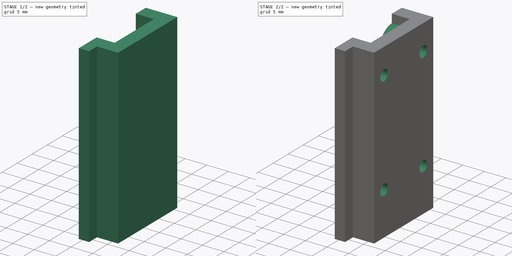
[diagram: build sequence overview — one tinted view per stage of 2, left to right]
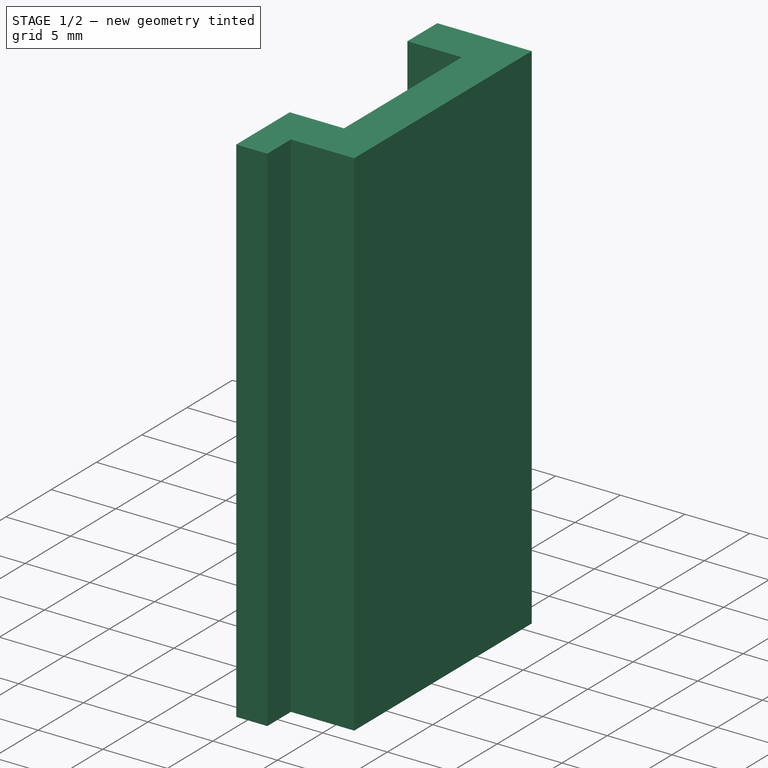
[diagram: stage 1 of 2 — iso view after this stage's code; geometry added in this stage tinted green]
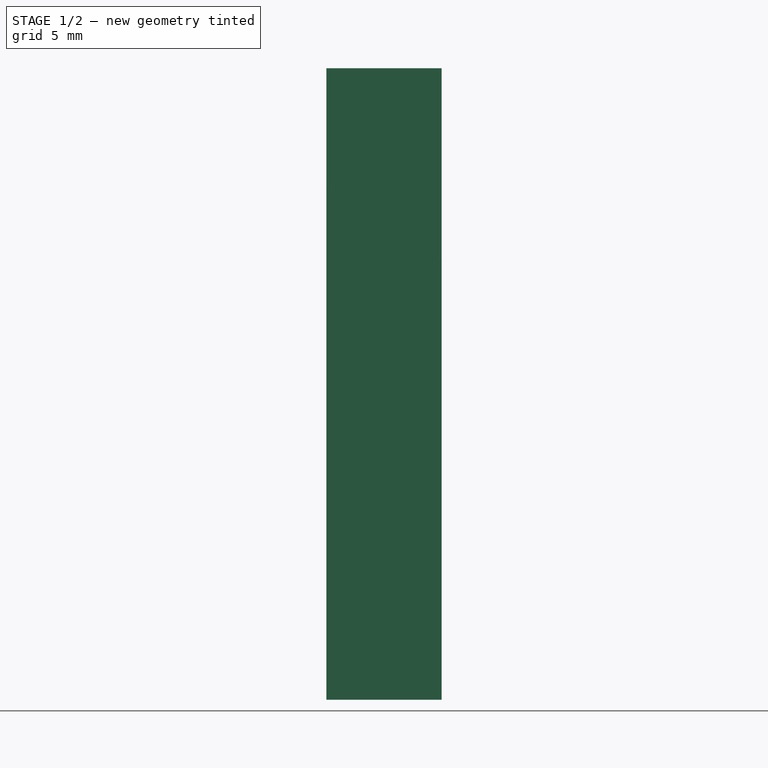
[diagram: stage 1 of 2 — front view after this stage's code; geometry added in this stage tinted green]
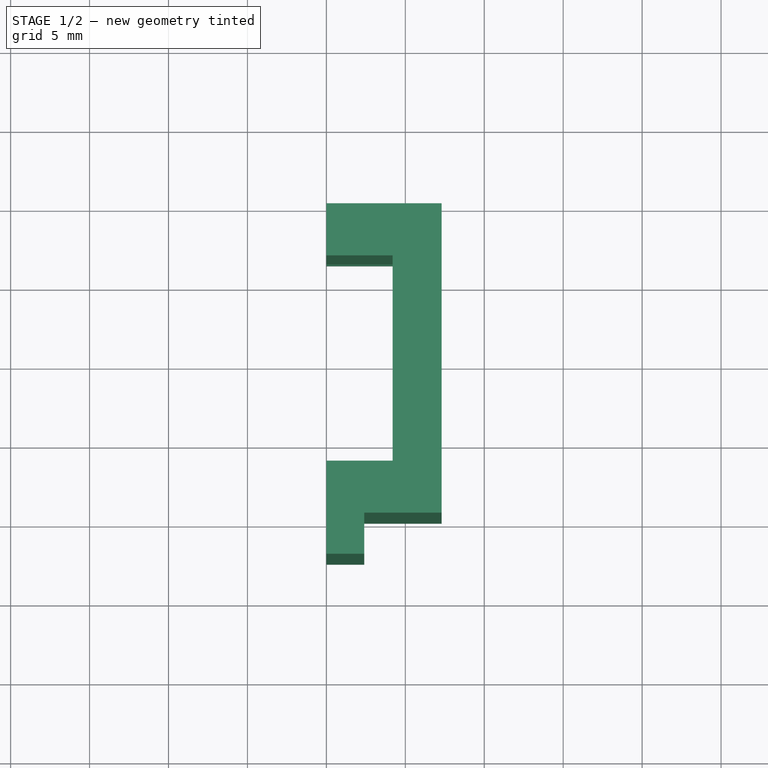
[diagram: stage 1 of 2 — top view after this stage's code; geometry added in this stage tinted green]
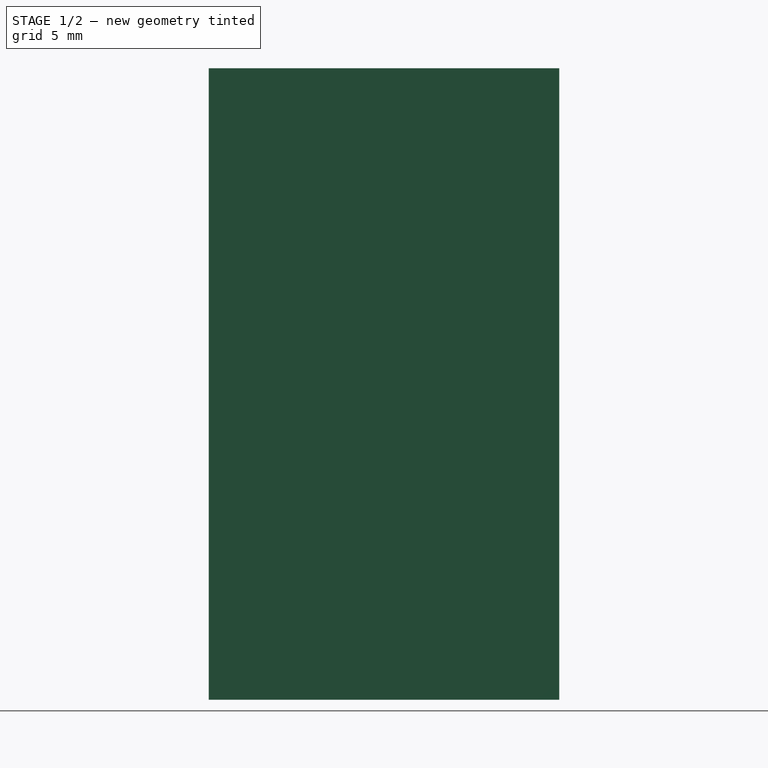
[diagram: stage 1 of 2 — right view after this stage's code; geometry added in this stage tinted green]
FCSTD DOCUMENT  (FreeCAD 0.16R6706 (Git))
Label: Prise-002
License: All rights reserved
LicenseURL: http://en.wikipedia.org/wiki/All_rights_reserved
objects: Sketcher::SketchObject×4, PartDesign::Pad×2, PartDesign::Pocket×2, Part::Feature×1
note: 13 computed .brp shape members not serialized (recipe doc carries the construction recipe); baked Part::Feature solids carry a one-line shape summary decoded from their .brp

FEATURE [Part::Feature] Part__Feature  label="Fusion"
  Placement = pos=(0,0,3) rot=(0,0,1;0rad)
  shape: bbox 8 x 15 x 9.6 mm, 42 faces (baked)
FEATURE [Sketcher::SketchObject] MirroredSketch  label="Sketch"
  sketch-geometry (10):
    g0: LineSegment StartX=7.3 StartY=9.8 StartZ=0 EndX=0 EndY=9.8 EndZ=0
    g1: LineSegment StartX=7.3 StartY=-9.8 StartZ=0 EndX=7.3 EndY=9.8 EndZ=0
    g2: LineSegment StartX=4.2 StartY=6.5 StartZ=0 EndX=0 EndY=6.5 EndZ=0
    g3: LineSegment StartX=0 StartY=-6.5 StartZ=0 EndX=4.2 EndY=-6.5 EndZ=0
    g4: LineSegment StartX=4.2 StartY=-6.5 StartZ=0 EndX=4.2 EndY=6.5 EndZ=0
    g5: LineSegment StartX=0 StartY=9.8 StartZ=0 EndX=0 EndY=6.5 EndZ=0
    g6: LineSegment StartX=0 StartY=-6.5 StartZ=0 EndX=0 EndY=-12.4 EndZ=0
    g7: LineSegment StartX=7.3 StartY=-9.8 StartZ=0 EndX=2.4 EndY=-9.8 EndZ=0
    g8: LineSegment StartX=2.4 StartY=-9.8 StartZ=0 EndX=2.4 EndY=-12.4 EndZ=0
    g9: LineSegment StartX=2.4 StartY=-12.4 StartZ=0 EndX=0 EndY=-12.4 EndZ=0
  constraints (30):
    c: Coincident(g1,g0)
    c: Horizontal(g0)
    c: Vertical(g1)
    c: Coincident(g3,g4)
    c: Coincident(g4,g2)
    c: Horizontal(g2)
    c: Horizontal(g3)
    c: Vertical(g4)
    c: Vertical(g6)
    c: Vertical(g5)
    c: Coincident(g0,g5)
    c: Coincident(g2,g5)
    c: Coincident(g3,g6)
    c: Coincident(g1,g7)
    c: Horizontal(g7)
    c: Coincident(g7,g8)
    c: Vertical(g8)
    c: Coincident(g8,g9)
    c: Horizontal(g9)
    c: Coincident(g6,g9)
    c: DistanceX(g0,g0) = 7.3
    c: DistanceY(g1,g1) = 19.6
    c: DistanceY(g0) = 9.8
    c: DistanceY(g4,g4) = 13
    c: DistanceX(g2,g2) = 4.2
    c: DistanceY(g8,g8) = 2.6
    c: DistanceX(g9,g9) = 2.4
    c: DistanceY(g3) = -6.5
    c: PointOnObject(g0,g-2)
    c: PointOnObject(g6,g-2)
FEATURE [PartDesign::Pad] Pad
  Length = 40
  Length2 = 100
  Sketch = -> MirroredSketch
  Type = 0
FEATURE [Sketcher::SketchObject] Sketch  label="Sketch001"
  Placement = pos=(0,0,0) rot=(0.57735,-0.57735,-0.57735;2.0944rad)
  Support = -> Pad [Face7]
  sketch-geometry (4):
    g0: LineSegment StartX=-7.5 StartY=5.5 StartZ=0 EndX=7.5 EndY=5.5 EndZ=0
    g1: LineSegment StartX=7.5 StartY=5.5 StartZ=0 EndX=7.5 EndY=3 EndZ=0
    g2: LineSegment StartX=7.5 StartY=3 StartZ=0 EndX=-7.5 EndY=3 EndZ=0
    g3: LineSegment StartX=-7.5 StartY=3 StartZ=0 EndX=-7.5 EndY=5.5 EndZ=0
  constraints (12):
    c: Coincident(g0,g1)
    c: Coincident(g1,g2)
    c: Coincident(g2,g3)
    c: Coincident(g3,g0)
    c: Horizontal(g0)
    c: Horizontal(g2)
    c: Vertical(g1)
    c: Vertical(g3)
    c: DistanceX(g0,g0) = 15
    c: DistanceX(g1) = 7.5
    c: DistanceY(g1) = 3
    c: DistanceY(g1,g1) = 2.5
FEATURE [PartDesign::Pocket] Pocket
  Length = 4.2
  Sketch = -> Sketch
  Type = 0
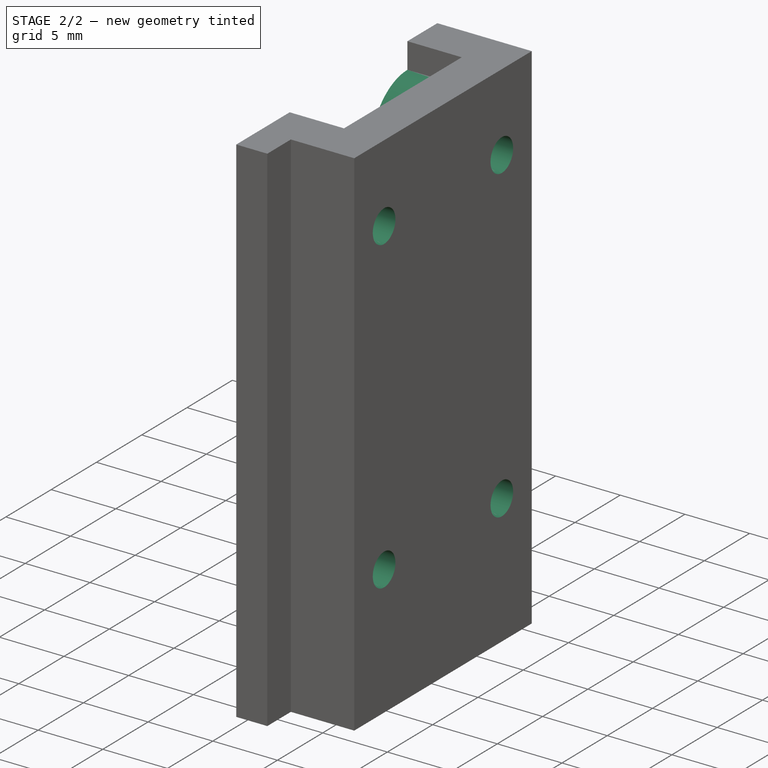
[diagram: stage 2 of 2 — iso view after this stage's code; geometry added in this stage tinted green]
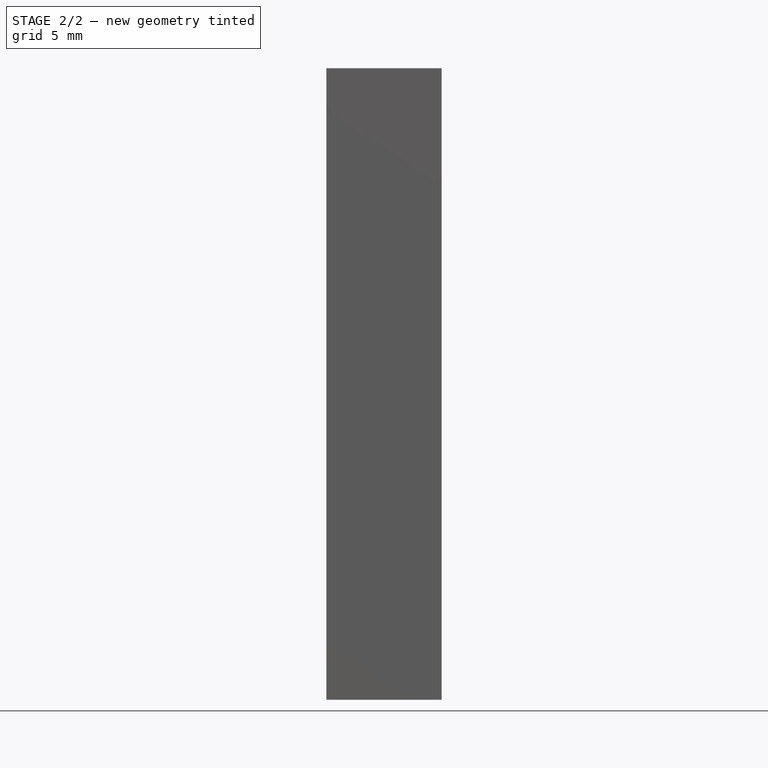
[diagram: stage 2 of 2 — front view after this stage's code; geometry added in this stage tinted green]
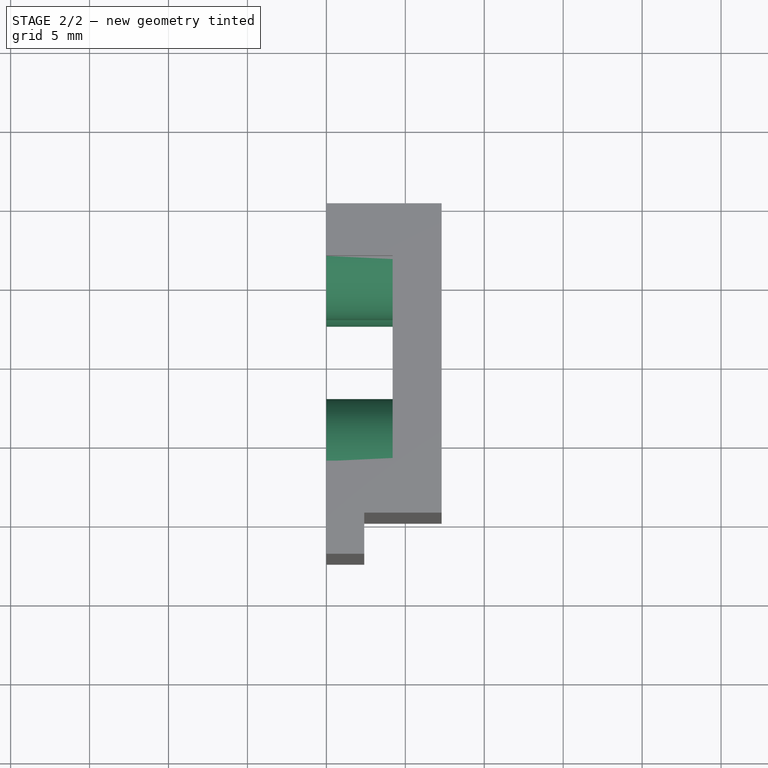
[diagram: stage 2 of 2 — top view after this stage's code; geometry added in this stage tinted green]
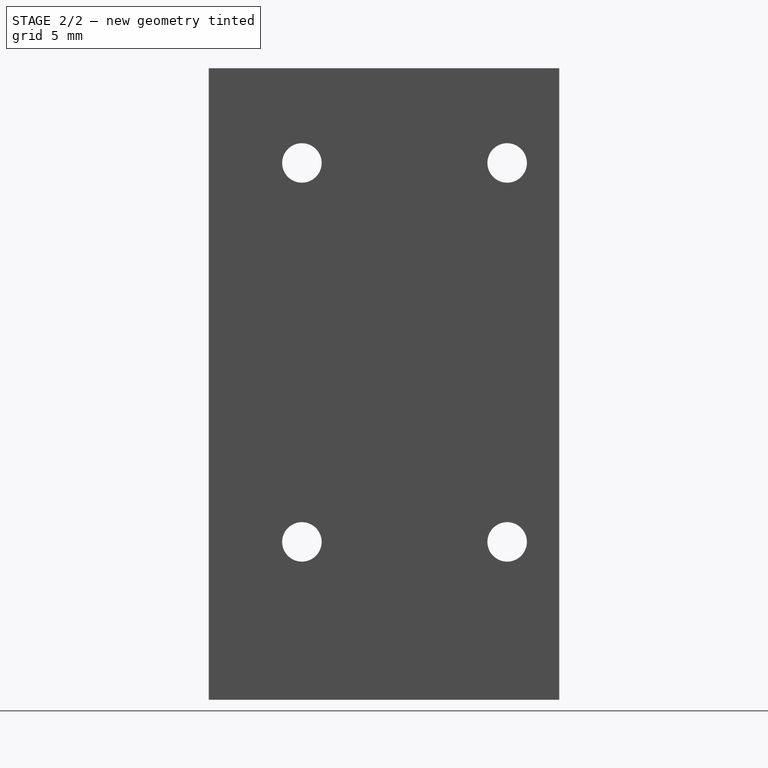
[diagram: stage 2 of 2 — right view after this stage's code; geometry added in this stage tinted green]
FEATURE [Sketcher::SketchObject] Sketch003
  Placement = pos=(4.2,0,0) rot=(0.57735,-0.57735,-0.57735;2.0944rad)
  Support = -> Pocket [Face9]
  sketch-geometry (8):
    g0: ArcOfCircle CenterX=-6.5 CenterY=10 CenterZ=0 NormalX=0 NormalY=0 NormalZ=1 Radius=4 StartAngle=4.71239 EndAngle=7.85398
    g1: LineSegment StartX=-6.5 StartY=14 StartZ=0 EndX=-6.5 EndY=6 EndZ=0
    g2: ArcOfCircle CenterX=6.5 CenterY=10 CenterZ=0 NormalX=0 NormalY=0 NormalZ=1 Radius=4 StartAngle=1.5708 EndAngle=4.71239
    g3: LineSegment StartX=6.5 StartY=14 StartZ=0 EndX=6.5 EndY=6 EndZ=0
    g4: ArcOfCircle CenterX=-6.5 CenterY=34 CenterZ=0 NormalX=0 NormalY=0 NormalZ=1 Radius=4 StartAngle=4.71239 EndAngle=7.85398
    g5: ArcOfCircle CenterX=6.5 CenterY=34 CenterZ=0 NormalX=0 NormalY=0 NormalZ=1 Radius=4 StartAngle=1.5708 EndAngle=4.71239
    g6: LineSegment StartX=-6.5 StartY=38 StartZ=0 EndX=-6.5 EndY=30 EndZ=0
    g7: LineSegment StartX=6.5 StartY=38 StartZ=0 EndX=6.5 EndY=30 EndZ=0
  constraints (28):
    c: DistanceY(g0) = 10
    c: Radius(g0) = 4
    c: DistanceX(g0) = -6.5
    c: Vertical(g1)
    c: Coincident(g0,g1)
    c: Coincident(g0,g1)
    c: PointOnObject(g0,g1)
    c: Vertical(g3)
    c: Coincident(g2,g3)
    c: PointOnObject(g2,g3)
    c: Coincident(g3,g2)
    c: Equal(g2,g0)
    c: DistanceX(g2) = 6.5
    c: DistanceY(g2) = 10
    c: Vertical(g6)
    c: Vertical(g7)
    c: Coincident(g5,g7)
    c: Coincident(g5,g7)
    c: PointOnObject(g5,g7)
    c: Coincident(g4,g6)
    c: Coincident(g4,g6)
    c: PointOnObject(g4,g6)
    c: Equal(g5,g4)
    c: Equal(g4,g0)
    c: DistanceX(g4) = -6.5
    c: DistanceY(g4) = 34
    c: DistanceX(g5) = 6.5
    c: DistanceY(g5) = 34
FEATURE [PartDesign::Pad] Pad001
  Length = 4.2
  Length2 = 100
  Sketch = -> Sketch003
  Type = 0
FEATURE [Sketcher::SketchObject] Sketch004
  Placement = pos=(7.3,0,0) rot=(0.57735,0.57735,0.57735;2.0944rad)
  Support = -> Pad001 [Face1]
  sketch-geometry (8):
    g0: LineSegment [constr] StartX=-6.5 StartY=34 StartZ=0 EndX=6.5 EndY=34 EndZ=0
    g1: LineSegment [constr] StartX=6.5 StartY=34 StartZ=0 EndX=6.5 EndY=10 EndZ=0
    g2: LineSegment [constr] StartX=6.5 StartY=10 StartZ=0 EndX=-6.5 EndY=10 EndZ=0
    g3: LineSegment [constr] StartX=-6.5 StartY=10 StartZ=0 EndX=-6.5 EndY=34 EndZ=0
    g4: Circle CenterX=-6.5 CenterY=34 CenterZ=0 NormalX=0 NormalY=0 NormalZ=1 Radius=1.25
    g5: Circle CenterX=6.5 CenterY=34 CenterZ=0 NormalX=0 NormalY=0 NormalZ=1 Radius=1.25
    g6: Circle CenterX=6.5 CenterY=10 CenterZ=0 NormalX=0 NormalY=0 NormalZ=1 Radius=1.25
    g7: Circle CenterX=-6.5 CenterY=10 CenterZ=0 NormalX=0 NormalY=0 NormalZ=1 Radius=1.25
  constraints (20):
    c: Coincident(g0,g1)
    c: Coincident(g1,g2)
    c: Coincident(g2,g3)
    c: Coincident(g3,g0)
    c: Horizontal(g0)
    c: Horizontal(g2)
    c: Vertical(g1)
    c: Vertical(g3)
    c: DistanceY(g1) = 10
    c: DistanceX(g1) = 6.5
    c: DistanceX(g2,g2) = 13
    c: DistanceY(g1,g1) = 24
    c: Coincident(g5,g0)
    c: Coincident(g6,g1)
    c: Coincident(g7,g2)
    c: Radius(g7) = 1.25
    c: Equal(g7,g4)
    c: Equal(g7,g5)
    c: Equal(g7,g6)
    c: Coincident(g4,g0)
FEATURE [PartDesign::Pocket] Pocket001
  Length = 8
  Sketch = -> Sketch004
  Type = 0
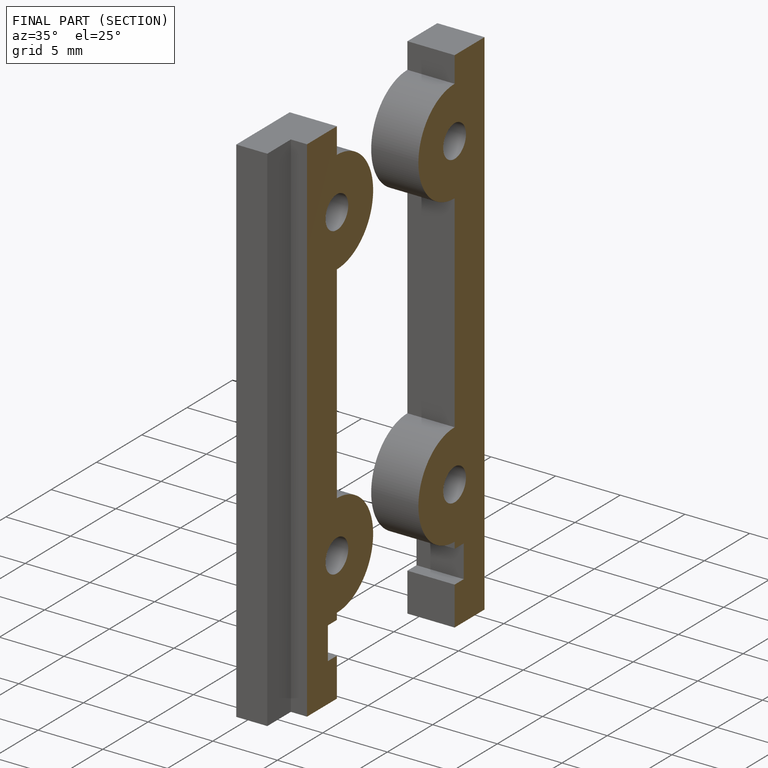
[diagram: finished part — half-section view (interior)]
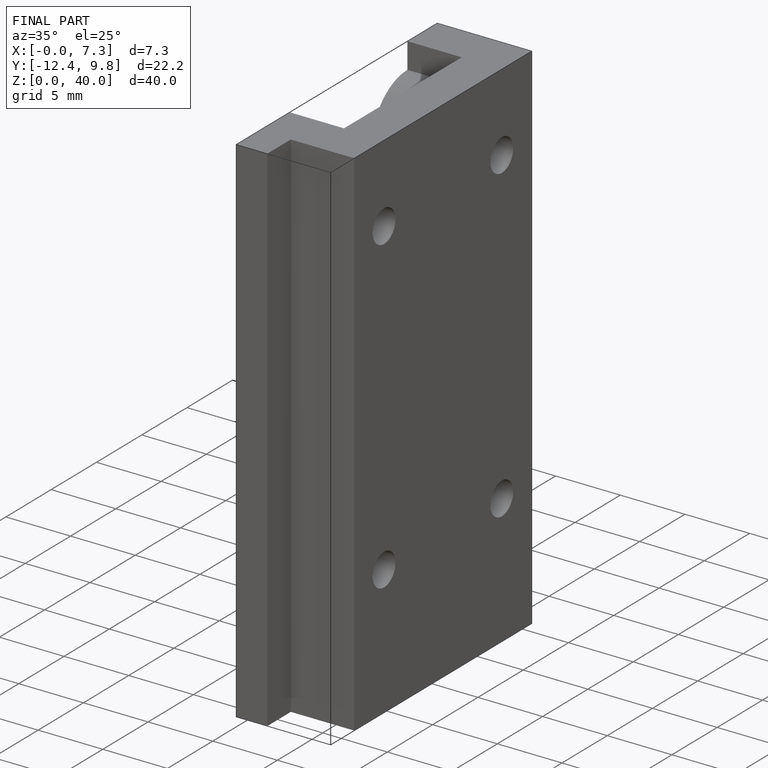
[diagram: finished part — iso view with bounding-box wireframe]
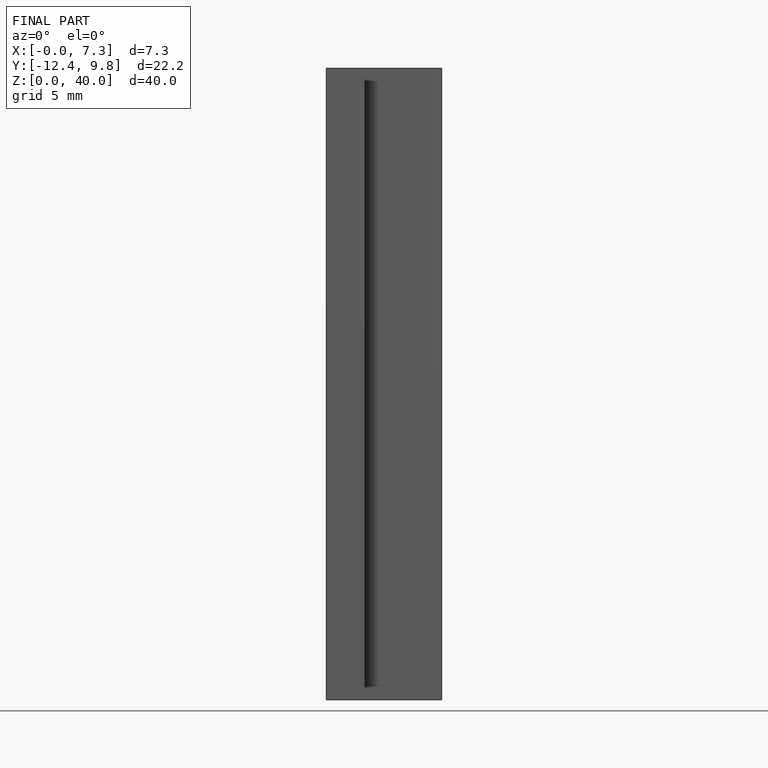
[diagram: finished part — front view with bounding-box wireframe]
